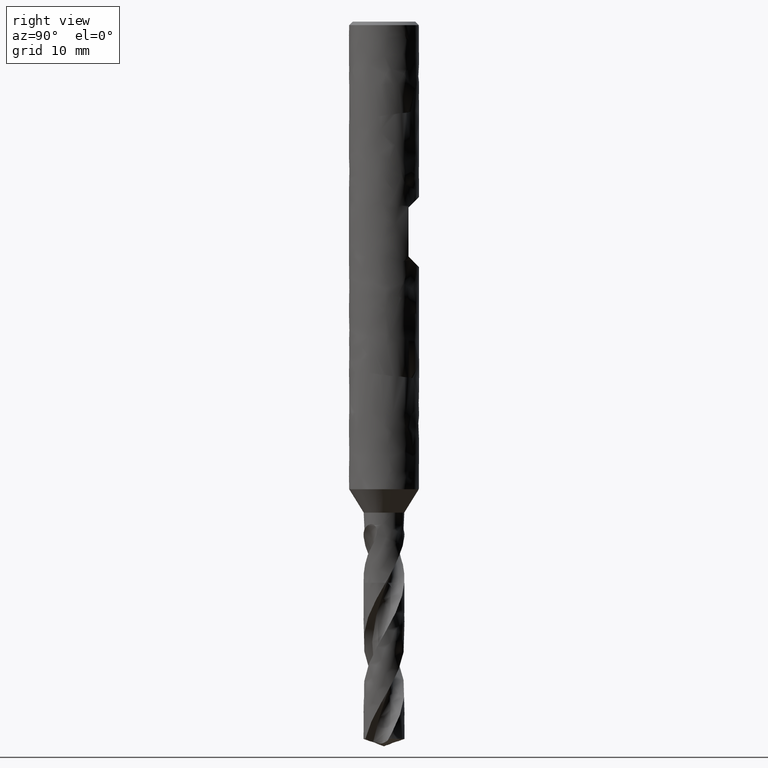
[diagram: clean part render]
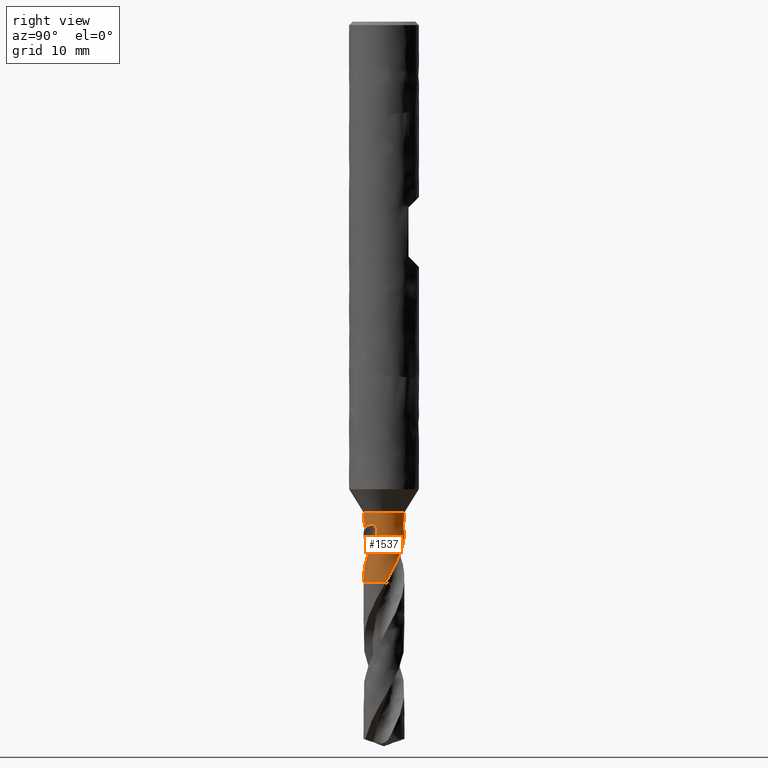
[diagram: same view with one face highlighted and labeled with its STEP entity id]
A machine part, right view. The second image highlights one B-rep face of the part: STEP entity #1537.
In plain terms, the highlighted face is a freeform B-spline surface patch.
Its self-contained STEP definition (entity closure, byte-faithful):
#75 = VERTEX_POINT('', #76);
#76 = CARTESIAN_POINT('', (-1.75, 2.67891487313483E-15, -42.));
#90 = EDGE_CURVE('', #75, #75, #91, .T.);
#91 = CIRCLE('', #92, 1.75);
#92 = AXIS2_PLACEMENT_3D('', #93, #94, #95);
#93 = CARTESIAN_POINT('', (1.57474777179495E-31, 2.57175827820944E-15, -42.));
#94 = DIRECTION('', (3.74939945665464E-33, 6.12323399573677E-17, -1.));
#95 = DIRECTION('', (-1., 6.12323399573677E-17, 0.));
#420 = VERTEX_POINT('', #421);
#421 = CARTESIAN_POINT('', (-1.74438217482353, -0.140110057304679, -48.));
#430 = VERTEX_POINT('', #431);
#431 = CARTESIAN_POINT('', (-0.0982316815535359, -1.74724083535704, -44.0364410090639));
#450 = EDGE_CURVE('', #430, #420, #451, .T.);
#451 = B_SPLINE_CURVE_WITH_KNOTS('', 3, (#452, #453, #454, #455, #456, #457, #458, #459, #460, #461, #462, #463, #464, #465, #466, #467, #468, #469, #470, #471, #472, #473, #474, #475, #476, #477, #478, #479, #480, #481, #482, #483, #484, #485, #486, #487, #488, #489, #490, #491, #492, #493, #494, #495, #496, #497, #498, #499, #500, #501, #502, #503, #504, #505, #506, #507, #508, #509, #510, #511, #512, #513, #514, #515, #516, #517, #518, #519, #520, #521, #522, #523, #524, #525, #526, #527, #528, #529, #530), .UNSPECIFIED., .F., .U., (4, 3, 3, 3, 3, 3, 3, 3, 3, 3, 3, 3, 3, 3, 3, 3, 3, 3, 3, 3, 3, 3, 3, 3, 3, 3, 4), (0., 0.19672174374837, 0.393447606873029, 0.590195334408365, 0.786979589867155, 0.98381046875644, 1.18069713024276, 1.37765106959039, 1.57468053595494, 1.87041982579311, 2.00180146103393, 2.19901176078685, 2.28661562764628, 2.37421036148187, 2.50556148507928, 2.63689136096546, 2.69527772533693, 2.89229641358599, 3.08924536666741, 3.38450117040478, 3.67972593633386, 3.81101800920561, 4.0078947967386, 4.1391833522097, 4.43428702561797, 4.63110672247985, 4.70039858098448), .UNSPECIFIED.);
#452 = CARTESIAN_POINT('', (-0.0982316815535359, -1.74724083535704, -44.0364410090639));
#453 = CARTESIAN_POINT('', (-0.140486543952289, -1.74486522341892, -44.0865291448377));
#454 = CARTESIAN_POINT('', (-0.182320539109545, -1.7409743816098, -44.1369245014227));
#455 = CARTESIAN_POINT('', (-0.223603589530472, -1.73565590908736, -44.1875936426399));
#456 = CARTESIAN_POINT('', (-0.264887504423297, -1.73033732519549, -44.2382638448747));
#457 = CARTESIAN_POINT('', (-0.305642327225331, -1.72358818768513, -44.2892373877197));
#458 = CARTESIAN_POINT('', (-0.345744098029239, -1.71550605323283, -44.3404881968753));
#459 = CARTESIAN_POINT('', (-0.385850325804751, -1.70742302051984, -44.3917447021235));
#460 = CARTESIAN_POINT('', (-0.425327667162014, -1.69800210153095, -44.4433030623318));
#461 = CARTESIAN_POINT('', (-0.464073074571237, -1.68734589858108, -44.4951327159855));
#462 = CARTESIAN_POINT('', (-0.502825675401669, -1.67668771721463, -44.5469719922643));
#463 = CARTESIAN_POINT('', (-0.540864754564272, -1.66478853367705, -44.5991088513807));
#464 = CARTESIAN_POINT('', (-0.578091073851488, -1.65175988277158, -44.6515218924505));
#465 = CARTESIAN_POINT('', (-0.615326213045082, -1.63872814503176, -44.7039473515655));
#466 = CARTESIAN_POINT('', (-0.651768074611052, -1.62455976646955, -44.7566715662768));
#467 = CARTESIAN_POINT('', (-0.687338702255017, -1.60936804627867, -44.8096682890939));
#468 = CARTESIAN_POINT('', (-0.72291941074605, -1.59417202069827, -44.8626800313778));
#469 = CARTESIAN_POINT('', (-0.757643444559132, -1.57794551009846, -44.9159879993618));
#470 = CARTESIAN_POINT('', (-0.791436854567528, -1.56080995167026, -44.9695746479554));
#471 = CARTESIAN_POINT('', (-0.825241812074036, -1.54366853787474, -45.0231796075666));
#472 = CARTESIAN_POINT('', (-0.858132443683715, -1.52560933007502, -45.0770829523868));
#473 = CARTESIAN_POINT('', (-0.890060535354285, -1.50674889859123, -45.1312583711703));
#474 = CARTESIAN_POINT('', (-0.922000870666835, -1.48788123459342, -45.1854545649013));
#475 = CARTESIAN_POINT('', (-0.952990272399225, -1.46820417719954, -45.2399435971521));
#476 = CARTESIAN_POINT('', (-0.982980200092172, -1.44784319808008, -45.2947107035739));
#477 = CARTESIAN_POINT('', (-1.02799478639674, -1.41728156881566, -45.376915591292));
#478 = CARTESIAN_POINT('', (-1.07078287873877, -1.38515968031091, -45.4598024102889));
#479 = CARTESIAN_POINT('', (-1.11124460835919, -1.35190066957326, -45.5433168184416));
#480 = CARTESIAN_POINT('', (-1.12921965727849, -1.33712541526195, -45.580417940566));
#481 = CARTESIAN_POINT('', (-1.14673957181535, -1.32212352622937, -45.6176527974825));
#482 = CARTESIAN_POINT('', (-1.16380659952563, -1.30692547564913, -45.6550110577499));
#483 = CARTESIAN_POINT('', (-1.1894250479828, -1.28411245383605, -45.7110876448016));
#484 = CARTESIAN_POINT('', (-1.21403430576089, -1.26084642271972, -45.7674519064826));
#485 = CARTESIAN_POINT('', (-1.23762101770658, -1.23725268903766, -45.8240939865246));
#486 = CARTESIAN_POINT('', (-1.24809860014285, -1.22677198743744, -45.849255274981));
#487 = CARTESIAN_POINT('', (-1.25837479305524, -1.21622635892958, -45.8744743400395));
#488 = CARTESIAN_POINT('', (-1.2684453668832, -1.20563110080677, -45.8997535671758));
#489 = CARTESIAN_POINT('', (-1.27851489081696, -1.19503694727842, -45.9250301588602));
#490 = CARTESIAN_POINT('', (-1.28837799004768, -1.1843942151721, -45.9503695309838));
#491 = CARTESIAN_POINT('', (-1.29803925320738, -1.17370954547232, -45.9757670764554));
#492 = CARTESIAN_POINT('', (-1.31252662837058, -1.15768753925254, -46.0138515135925));
#493 = CARTESIAN_POINT('', (-1.32655939097619, -1.14157348308101, -46.0520724736606));
#494 = CARTESIAN_POINT('', (-1.34019796015658, -1.12533080807031, -46.0903762334458));
#495 = CARTESIAN_POINT('', (-1.35383432312532, -1.10909076051843, -46.1286737971118));
#496 = CARTESIAN_POINT('', (-1.36707900652763, -1.09272088478574, -46.1670574997701));
#497 = CARTESIAN_POINT('', (-1.38003527414155, -1.07610531181899, -46.2054300262279));
#498 = CARTESIAN_POINT('', (-1.38579534477816, -1.06871839478331, -46.2224896046103));
#499 = CARTESIAN_POINT('', (-1.39150078794791, -1.06127928612672, -46.2395452035171));
#500 = CARTESIAN_POINT('', (-1.3971548905182, -1.0537828105929, -46.2565924364394));
#501 = CARTESIAN_POINT('', (-1.41623406908354, -1.02848673689377, -46.3141165433913));
#502 = CARTESIAN_POINT('', (-1.43471228645753, -1.00255643579999, -46.3715677835569));
#503 = CARTESIAN_POINT('', (-1.45251452431965, -0.976064319930021, -46.4289627084524));
#504 = CARTESIAN_POINT('', (-1.47031046104327, -0.949581580998651, -46.4863373182969));
#505 = CARTESIAN_POINT('', (-1.48743348061284, -0.922534502017627, -46.5436669819351));
#506 = CARTESIAN_POINT('', (-1.50383286278977, -0.89497861471296, -46.6009523205398));
#507 = CARTESIAN_POINT('', (-1.52841797832194, -0.853668236939727, -46.68683157213));
#508 = CARTESIAN_POINT('', (-1.55139301657926, -0.811188777058865, -46.7726332578273));
#509 = CARTESIAN_POINT('', (-1.57264644417919, -0.767647810920274, -46.8582994539268));
#510 = CARTESIAN_POINT('', (-1.5938976375815, -0.724111421884463, -46.9439566446453));
#511 = CARTESIAN_POINT('', (-1.61343762804156, -0.679486915537253, -47.0295098437066));
#512 = CARTESIAN_POINT('', (-1.63112413965787, -0.633982681960248, -47.1149541925339));
#513 = CARTESIAN_POINT('', (-1.63898966802798, -0.613746083137097, -47.1529529208499));
#514 = CARTESIAN_POINT('', (-1.64648978766172, -0.593333927910484, -47.1909359721852));
#515 = CARTESIAN_POINT('', (-1.65361378478654, -0.572766488862548, -47.2289033125988));
#516 = CARTESIAN_POINT('', (-1.66429645311259, -0.541924936596908, -47.2858365900489));
#517 = CARTESIAN_POINT('', (-1.67413657760607, -0.510723107786674, -47.3427402011025));
#518 = CARTESIAN_POINT('', (-1.68310028634625, -0.479242554559975, -47.3996202988879));
#519 = CARTESIAN_POINT('', (-1.68907779332871, -0.458249544615257, -47.4375511589293));
#520 = CARTESIAN_POINT('', (-1.69466599096712, -0.437131354531501, -47.4754762868185));
#521 = CARTESIAN_POINT('', (-1.6998548629264, -0.415924806888767, -47.5134044444934));
#522 = CARTESIAN_POINT('', (-1.71151814287136, -0.368257818039492, -47.5986574097294));
#523 = CARTESIAN_POINT('', (-1.72116463384556, -0.320145973055297, -47.6839623668888));
#524 = CARTESIAN_POINT('', (-1.72877354606659, -0.271738893830723, -47.7692565703397));
#525 = CARTESIAN_POINT('', (-1.7338483178561, -0.239453742822898, -47.8261436265847));
#526 = CARTESIAN_POINT('', (-1.73801892914552, -0.20702355174964, -47.883036395914));
#527 = CARTESIAN_POINT('', (-1.74127841520211, -0.174497795834842, -47.9399193670508));
#528 = CARTESIAN_POINT('', (-1.74242594184824, -0.163046858187142, -47.9599454459961));
#529 = CARTESIAN_POINT('', (-1.74346072031782, -0.151582244566561, -47.9799744046441));
#530 = CARTESIAN_POINT('', (-1.74438217482353, -0.140110057304679, -48.));
#569 = VERTEX_POINT('', #570);
#570 = CARTESIAN_POINT('', (-0.209315928972216, -1.73743685676138, -48.));
#625 = EDGE_CURVE('', #626, #569, #628, .T.);
#626 = VERTEX_POINT('', #627);
#627 = CARTESIAN_POINT('', (0.670503920200048, -1.61645429659992, -46.4198884757351));
#628 = B_SPLINE_CURVE_WITH_KNOTS('', 3, (#629, #630, #631, #632, #633, #634, #635, #636, #637, #638, #639, #640, #641, #642, #643, #644, #645, #646, #647, #648, #649, #650, #651, #652, #653, #654, #655, #656, #657, #658, #659, #660, #661, #662), .UNSPECIFIED., .F., .U., (4, 3, 3, 3, 3, 3, 3, 3, 3, 3, 3, 4), (0., 0.196912370684653, 0.492059195325573, 0.787148468239618, 0.918409681121345, 1.11521293322306, 1.24646837218767, 1.37771199716514, 1.41662988129931, 1.61395339891345, 1.81125986598311, 1.81740518934498), .UNSPECIFIED.);
#629 = CARTESIAN_POINT('', (0.670503920200047, -1.61645429659992, -46.4198884757351));
#630 = CARTESIAN_POINT('', (0.641567049603881, -1.62845728685697, -46.477567427638));
#631 = CARTESIAN_POINT('', (0.61213232277094, -1.63975511168635, -46.5351500155752));
#632 = CARTESIAN_POINT('', (0.582269470543588, -1.65029156929112, -46.5926432227011));
#633 = CARTESIAN_POINT('', (0.537508818996007, -1.66608439121591, -46.6788182936864));
#634 = CARTESIAN_POINT('', (0.491763708956138, -1.68017495230515, -46.764817784929));
#635 = CARTESIAN_POINT('', (0.445187825674481, -1.69242660102919, -46.8506062236063));
#636 = CARTESIAN_POINT('', (0.398621024389613, -1.70467586076076, -46.9363779340916));
#637 = CARTESIAN_POINT('', (0.351192379158234, -1.71509257486522, -47.0219681604022));
#638 = CARTESIAN_POINT('', (0.303158585739479, -1.72354137516116, -47.1073887090354));
#639 = CARTESIAN_POINT('', (0.281792258454202, -1.72729955912796, -47.1453853624139));
#640 = CARTESIAN_POINT('', (0.260303767323908, -1.73066945308907, -47.1833539374585));
#641 = CARTESIAN_POINT('', (0.238717380773135, -1.73364183501576, -47.2212957668518));
#642 = CARTESIAN_POINT('', (0.206352366150387, -1.73809840232013, -47.2781829100633));
#643 = CARTESIAN_POINT('', (0.173757758337975, -1.74166164744573, -47.3350169121262));
#644 = CARTESIAN_POINT('', (0.141046044290308, -1.74430674291825, -47.3918187559381));
#645 = CARTESIAN_POINT('', (0.119229380486439, -1.74607085587696, -47.4297020269913));
#646 = CARTESIAN_POINT('', (0.0973593200607882, -1.74742687072466, -47.4675757770086));
#647 = CARTESIAN_POINT('', (0.0754820796046046, -1.74837137235158, -47.5054534142957));
#648 = CARTESIAN_POINT('', (0.0536068082663439, -1.74931578896617, -47.5433276423076));
#649 = CARTESIAN_POINT('', (0.0317271915754814, -1.74984903786735, -47.5812118337766));
#650 = CARTESIAN_POINT('', (0.0098581533369631, -1.74997223315479, -47.6191012327663));
#651 = CARTESIAN_POINT('', (0.00337329209941045, -1.7500087644524, -47.6303366374578));
#652 = CARTESIAN_POINT('', (-0.0031108152520683, -1.75000924399543, -47.6415726522982));
#653 = CARTESIAN_POINT('', (-0.00959386837336357, -1.74997370199944, -47.6528091035787));
#654 = CARTESIAN_POINT('', (-0.0424645877157391, -1.7497934950887, -47.7097807540551));
#655 = CARTESIAN_POINT('', (-0.0753111378252613, -1.74868738550184, -47.7667709256039));
#656 = CARTESIAN_POINT('', (-0.108101702283763, -1.74665795791944, -47.8237529045868));
#657 = CARTESIAN_POINT('', (-0.140889433339615, -1.74462870569803, -47.8807299598091));
#658 = CARTESIAN_POINT('', (-0.173632282435535, -1.74167501371979, -47.9377074348598));
#659 = CARTESIAN_POINT('', (-0.206266905327609, -1.73780147421003, -47.9946768571364));
#660 = CARTESIAN_POINT('', (-0.207283345961527, -1.73768082863162, -47.9964512314224));
#661 = CARTESIAN_POINT('', (-0.208299687821011, -1.73755928937422, -47.9982256124543));
#662 = CARTESIAN_POINT('', (-0.209315928972216, -1.73743685676138, -48.));
#665 = VERTEX_POINT('', #666);
#666 = CARTESIAN_POINT('', (1.06988006260758, -1.38486701586643, -45.6098181163307));
#675 = EDGE_CURVE('', #676, #665, #678, .T.);
#676 = VERTEX_POINT('', #677);
#677 = CARTESIAN_POINT('', (1.36812524291428, -1.09120727623158, -43.));
#678 = B_SPLINE_CURVE_WITH_KNOTS('', 3, (#679, #680, #681, #682, #683, #684, #685, #686, #687, #688, #689, #690, #691, #692, #693, #694, #695, #696, #697, #698, #699, #700, #701, #702, #703, #704, #705, #706, #707, #708, #709, #710, #711, #712, #713, #714, #715, #716, #717, #718, #719, #720, #721, #722, #723, #724, #725, #726, #727, #728, #729, #730, #731, #732, #733, #734, #735, #736, #737, #738, #739, #740, #741, #742, #743, #744, #745, #746, #747, #748, #749, #750, #751, #752, #753, #754, #755, #756, #757, #758, #759, #760, #761, #762, #763, #764, #765, #766, #767, #768, #769, #770, #771, #772, #773, #774, #775, #776, #777, #778), .UNSPECIFIED., .F., .U., (4, 3, 3, 3, 3, 3, 3, 3, 3, 3, 3, 3, 3, 3, 3, 3, 3, 3, 3, 3, 3, 3, 3, 3, 3, 3, 3, 3, 3, 3, 3, 3, 3, 4), (0., 0.0876064604284162, 0.174954474055979, 0.233061554713989, 0.291071857956427, 0.348998773800866, 0.406869704771239, 0.464722692013906, 0.522597972911667, 0.58052854123835, 0.6385346334677, 0.696623652282654, 0.754793499270582, 0.793650941808806, 0.881083362469084, 0.968658215114641, 1.05634098697163, 1.18816145221221, 1.32013795023672, 1.45219513306295, 1.58428299878999, 1.71636487271589, 1.84841881080709, 1.98042811375123, 2.11237955534745, 2.2442673283256, 2.37608666631463, 2.50783673724395, 2.63952265806685, 2.77114618353116, 2.90270633107335, 3.03420591419199, 3.16565618698797, 3.18550606596538), .UNSPECIFIED.);
#679 = CARTESIAN_POINT('', (1.36812524291503, -1.09120727623063, -43.));
#680 = CARTESIAN_POINT('', (1.3863341507876, -1.06837745549077, -43.0000269577031));
#681 = CARTESIAN_POINT('', (1.404010280117, -1.0450337117202, -43.0016506137325));
#682 = CARTESIAN_POINT('', (1.42093114160208, -1.02149629995678, -43.0051777176047));
#683 = CARTESIAN_POINT('', (1.43780208505034, -0.998028325638281, -43.0086944162089));
#684 = CARTESIAN_POINT('', (1.45400448005079, -0.974248773254522, -43.0141286427403));
#685 = CARTESIAN_POINT('', (1.46927015733305, -0.950655145029208, -43.021747141595));
#686 = CARTESIAN_POINT('', (1.4794254419732, -0.934959804043561, -43.0268152445668));
#687 = CARTESIAN_POINT('', (1.48920161623475, -0.919295187944383, -43.0328663552207));
#688 = CARTESIAN_POINT('', (1.49851413549821, -0.903855843435251, -43.0399418642912));
#689 = CARTESIAN_POINT('', (1.50781114474917, -0.888442213173726, -43.0470055890925));
#690 = CARTESIAN_POINT('', (1.5166773828833, -0.873201001334438, -43.0551163445982));
#691 = CARTESIAN_POINT('', (1.52503401379854, -0.858353806281251, -43.0642617317261));
#692 = CARTESIAN_POINT('', (1.53337863240443, -0.84352795345339, -43.0733939727404));
#693 = CARTESIAN_POINT('', (1.54124679019073, -0.829039208698176, -43.0835942549671));
#694 = CARTESIAN_POINT('', (1.54857711546831, -0.815112824980589, -43.094781683875));
#695 = CARTESIAN_POINT('', (1.55590035617508, -0.801199900754626, -43.1059583004206));
#696 = CARTESIAN_POINT('', (1.56271666849305, -0.787792721946847, -43.1181658146862));
#697 = CARTESIAN_POINT('', (1.56899220606779, -0.775089322141983, -43.1312561673905));
#698 = CARTESIAN_POINT('', (1.57526579782041, -0.762389861211839, -43.1443424612396));
#699 = CARTESIAN_POINT('', (1.58102494242089, -0.750342700622784, -43.1583630327344));
#700 = CARTESIAN_POINT('', (1.58626665650486, -0.73909275091892, -43.173122721526));
#701 = CARTESIAN_POINT('', (1.59151039048393, -0.727838466045681, -43.1878880979652));
#702 = CARTESIAN_POINT('', (1.59625704608792, -0.717338885973317, -43.2034474152414));
#703 = CARTESIAN_POINT('', (1.60052967737482, -0.707675597885403, -43.2195885893208));
#704 = CARTESIAN_POINT('', (1.60480639024533, -0.698003078596447, -43.2357451828331));
#705 = CARTESIAN_POINT('', (1.60862336037621, -0.689134999639388, -43.2525371820438));
#706 = CARTESIAN_POINT('', (1.61201994979088, -0.681095941462145, -43.2697627485153));
#707 = CARTESIAN_POINT('', (1.61542096732866, -0.673046402789632, -43.2870107719046));
#708 = CARTESIAN_POINT('', (1.61841076246628, -0.665804115057992, -43.3047410077672));
#709 = CARTESIAN_POINT('', (1.62103510471231, -0.659352098116285, -43.3227782084682));
#710 = CARTESIAN_POINT('', (1.6236631987667, -0.652890857251458, -43.340841195486));
#711 = CARTESIAN_POINT('', (1.62593124378833, -0.64720623333377, -43.3592529956072));
#712 = CARTESIAN_POINT('', (1.62788424011676, -0.642256102173793, -43.3778704073155));
#713 = CARTESIAN_POINT('', (1.62983995394892, -0.637299083136111, -43.3965137242879));
#714 = CARTESIAN_POINT('', (1.6314835398811, -0.633068717165675, -43.4153973776843));
#715 = CARTESIAN_POINT('', (1.63285527563452, -0.629510642351603, -43.4344086524103));
#716 = CARTESIAN_POINT('', (1.63377159475819, -0.627133849308583, -43.4471081789433));
#717 = CARTESIAN_POINT('', (1.63456730896523, -0.625054731716784, -43.4598757454494));
#718 = CARTESIAN_POINT('', (1.63525284940557, -0.623256061752319, -43.4726843980222));
#719 = CARTESIAN_POINT('', (1.63679537141021, -0.619208907367227, -43.5015049128757));
#720 = CARTESIAN_POINT('', (1.63778463798036, -0.616574217410797, -43.5305822517412));
#721 = CARTESIAN_POINT('', (1.63831611610973, -0.615158762999557, -43.5596871470163));
#722 = CARTESIAN_POINT('', (1.63884846004476, -0.613741002739063, -43.5888394556878));
#723 = CARTESIAN_POINT('', (1.63892230906078, -0.613542565414393, -43.6180804678249));
#724 = CARTESIAN_POINT('', (1.63860542044066, -0.614387724570164, -43.6472581274758));
#725 = CARTESIAN_POINT('', (1.63828814131608, -0.615233925222516, -43.6764717429967));
#726 = CARTESIAN_POINT('', (1.63757845114079, -0.617126972709268, -43.7056665546259));
#727 = CARTESIAN_POINT('', (1.63652260656598, -0.619914315206936, -43.7347417668767));
#728 = CARTESIAN_POINT('', (1.63493527167539, -0.62410474825377, -43.7784528394704));
#729 = CARTESIAN_POINT('', (1.63256408533588, -0.630321414343345, -43.8219770940221));
#730 = CARTESIAN_POINT('', (1.62950060100851, -0.638144020823593, -43.8651066560429));
#731 = CARTESIAN_POINT('', (1.62643349050681, -0.645975886739122, -43.9082872695117));
#732 = CARTESIAN_POINT('', (1.62266547045788, -0.655432542192796, -43.9511493046943));
#733 = CARTESIAN_POINT('', (1.6182416848958, -0.666178541582971, -43.993578826121));
#734 = CARTESIAN_POINT('', (1.61381519481991, -0.676931110618827, -44.0360342871473));
#735 = CARTESIAN_POINT('', (1.60872598957346, -0.688988315905038, -44.0781096464362));
#736 = CARTESIAN_POINT('', (1.6029929522305, -0.702078054848129, -44.1197445926166));
#737 = CARTESIAN_POINT('', (1.59725858284174, -0.715170835134015, -44.1613892124922));
#738 = CARTESIAN_POINT('', (1.59087429730304, -0.729309263479572, -44.2026305734875));
#739 = CARTESIAN_POINT('', (1.58384688407942, -0.744264098147904, -44.2434416827092));
#740 = CARTESIAN_POINT('', (1.57681978963498, -0.759218254431473, -44.2842509406477));
#741 = CARTESIAN_POINT('', (1.56914497236116, -0.774998383029103, -44.3246577909049));
#742 = CARTESIAN_POINT('', (1.56082539904291, -0.791406389728155, -44.3646573458516));
#743 = CARTESIAN_POINT('', (1.55250758534706, -0.807810926069397, -44.4046484407356));
#744 = CARTESIAN_POINT('', (1.5435405496855, -0.824852348845201, -44.4442528028221));
#745 = CARTESIAN_POINT('', (1.53392774909446, -0.842357204847213, -44.483479790833));
#746 = CARTESIAN_POINT('', (1.5243181976967, -0.859856144086474, -44.5226935198499));
#747 = CARTESIAN_POINT('', (1.51405916942343, -0.877825626761955, -44.5615459288459));
#748 = CARTESIAN_POINT('', (1.50316056623925, -0.896107310595856, -44.6000592172125));
#749 = CARTESIAN_POINT('', (1.49226674005075, -0.914380981336397, -44.6385556247174));
#750 = CARTESIAN_POINT('', (1.48073072154359, -0.932971906698418, -44.6767262239139));
#751 = CARTESIAN_POINT('', (1.46856927707271, -0.951737505007602, -44.7146013802915));
#752 = CARTESIAN_POINT('', (1.4564137006875, -0.970494048624415, -44.7524582613185));
#753 = CARTESIAN_POINT('', (1.44362988242142, -0.989430330083765, -44.7900299071547));
#754 = CARTESIAN_POINT('', (1.4302441027383, -1.00841549302967, -44.8273540802465));
#755 = CARTESIAN_POINT('', (1.41686526877627, -1.02739080480143, -44.864658886271));
#756 = CARTESIAN_POINT('', (1.40288197767705, -1.04641926745805, -44.9017246477944));
#757 = CARTESIAN_POINT('', (1.38833301293586, -1.06537854549094, -44.9385970983363));
#758 = CARTESIAN_POINT('', (1.37379169323389, -1.08432786099888, -44.9754501735251));
#759 = CARTESIAN_POINT('', (1.35868264556515, -1.1032116088272, -45.0121172299971));
#760 = CARTESIAN_POINT('', (1.34305265502258, -1.12192226372277, -45.0486451710393));
#761 = CARTESIAN_POINT('', (1.32743027484066, -1.14062380825891, -45.0851553263507));
#762 = CARTESIAN_POINT('', (1.31128472585614, -1.15915559594471, -45.1215325152537));
#763 = CARTESIAN_POINT('', (1.29467670035659, -1.17741761561223, -45.1578294861757));
#764 = CARTESIAN_POINT('', (1.27807654406357, -1.19567098237851, -45.1941092588847));
#765 = CARTESIAN_POINT('', (1.26101170614617, -1.21365760378228, -45.2303143985887));
#766 = CARTESIAN_POINT('', (1.24355892790831, -1.23128436716311, -45.2665037649768));
#767 = CARTESIAN_POINT('', (1.22611455334156, -1.24890264309739, -45.3026757058565));
#768 = CARTESIAN_POINT('', (1.20828064233756, -1.26616346133203, -45.3388377486217));
#769 = CARTESIAN_POINT('', (1.19014354058683, -1.28298805637509, -45.3750468317314));
#770 = CARTESIAN_POINT('', (1.17201478834873, -1.29980490612506, -45.4112392457944));
#771 = CARTESIAN_POINT('', (1.15358053186681, -1.31618842578887, -45.4474840963224));
#772 = CARTESIAN_POINT('', (1.13493513037531, -1.33207441602936, -45.4838342441382));
#773 = CARTESIAN_POINT('', (1.1162967206228, -1.34795444926768, -45.5201707612073));
#774 = CARTESIAN_POINT('', (1.09744458048193, -1.3633397724085, -45.5566183766007));
#775 = CARTESIAN_POINT('', (1.07847924418622, -1.37818087341956, -45.5932239224432));
#776 = CARTESIAN_POINT('', (1.07561535031801, -1.38042197990565, -45.598751607091));
#777 = CARTESIAN_POINT('', (1.07274883844845, -1.38265074091651, -45.6042829564905));
#778 = CARTESIAN_POINT('', (1.06988006260758, -1.38486701586643, -45.6098181163307));
#780 = EDGE_CURVE('', #676, #781, #783, .T.);
#781 = VERTEX_POINT('', #782);
#782 = CARTESIAN_POINT('', (1.36720002635966, -1.09236627919491, -43.));
#783 = LINE('', #784, #785);
#784 = CARTESIAN_POINT('', (1.36812524291428, -1.09120727623158, -43.));
#785 = VECTOR('', #786, 0.0014830082744049);
#786 = DIRECTION('', (-0.000925216554617414, -0.00115900296333327, 0.));
#788 = EDGE_CURVE('', #781, #430, #789, .T.);
#789 = B_SPLINE_CURVE_WITH_KNOTS('', 3, (#790, #791, #792, #793, #794, #795, #796, #797, #798, #799, #800, #801, #802, #803, #804, #805, #806, #807, #808, #809, #810, #811, #812, #813, #814, #815, #816, #817, #818, #819, #820, #821, #822, #823, #824, #825, #826, #827, #828, #829, #830, #831, #832, #833, #834, #835, #836, #837, #838), .UNSPECIFIED., .F., .U., (4, 3, 3, 3, 3, 3, 3, 3, 3, 3, 3, 3, 3, 3, 3, 3, 4), (0., 0.0877886895911816, 0.175300693010441, 0.262613165509976, 0.349783454359497, 0.436852692636223, 0.566934991375601, 0.696854749284846, 0.826680091037021, 0.956454580274272, 1.08620733632173, 1.2796571814525, 1.47316306476609, 1.66678634796347, 1.86058634812987, 1.88649870792638, 2.01355357009072), .UNSPECIFIED.);
#790 = CARTESIAN_POINT('', (1.36720002635868, -1.09236627919614, -43.));
#791 = CARTESIAN_POINT('', (1.348933861896, -1.1152281168512, -43.0000269852739));
#792 = CARTESIAN_POINT('', (1.33006821204651, -1.13765822958676, -43.0016488214403));
#793 = CARTESIAN_POINT('', (1.31077786483607, -1.15946599305706, -43.004584987354));
#794 = CARTESIAN_POINT('', (1.29154831557522, -1.18120502436356, -43.0075118992679));
#795 = CARTESIAN_POINT('', (1.27184451708894, -1.20238684915239, -43.0117518775306));
#796 = CARTESIAN_POINT('', (1.25180205315617, -1.22290294779022, -43.0170732679936));
#797 = CARTESIAN_POINT('', (1.23180528685464, -1.24337226889045, -43.0223825254702));
#798 = CARTESIAN_POINT('', (1.21143012706524, -1.26322240000761, -43.0287791878967));
#799 = CARTESIAN_POINT('', (1.1907841901799, -1.28239347020234, -43.036077635779));
#800 = CARTESIAN_POINT('', (1.1701718740887, -1.30153332134375, -43.0433641985328));
#801 = CARTESIAN_POINT('', (1.14925634618401, -1.3200279752899, -43.0515616176578));
#802 = CARTESIAN_POINT('', (1.12812553244469, -1.33784632265682, -43.0605221243928));
#803 = CARTESIAN_POINT('', (1.10701921421709, -1.35564401442845, -43.0694722438234));
#804 = CARTESIAN_POINT('', (1.08567058747276, -1.37279058915999, -43.0791956189171));
#805 = CARTESIAN_POINT('', (1.06415354893067, -1.38927219230007, -43.0895741038574));
#806 = CARTESIAN_POINT('', (1.03200688162295, -1.41389586956894, -43.1050796624815));
#807 = CARTESIAN_POINT('', (0.999422911294785, -1.4370815671387, -43.1220749485011));
#808 = CARTESIAN_POINT('', (0.966607873839315, -1.45882460159946, -43.1402565276051));
#809 = CARTESIAN_POINT('', (0.933833839529395, -1.48054046763758, -43.1584153884069));
#810 = CARTESIAN_POINT('', (0.90076643296362, -1.50085983860467, -43.1777936421147));
#811 = CARTESIAN_POINT('', (0.867577818090698, -1.51980549069839, -43.1981661357744));
#812 = CARTESIAN_POINT('', (0.834413322270376, -1.53873737448087, -43.218523824199));
#813 = CARTESIAN_POINT('', (0.801075985750746, -1.5563275697995, -43.2399069142451));
#814 = CARTESIAN_POINT('', (0.767714421174675, -1.57261392831185, -43.262144180714));
#815 = CARTESIAN_POINT('', (0.73436592430509, -1.58889390746653, -43.2843727368578));
#816 = CARTESIAN_POINT('', (0.70094949482811, -1.60389266613633, -43.3074844654398));
#817 = CARTESIAN_POINT('', (0.667596585717259, -1.61765719444468, -43.3313463573864));
#818 = CARTESIAN_POINT('', (0.634249262181108, -1.63141941762275, -43.3552042532083));
#819 = CARTESIAN_POINT('', (0.600927887413, -1.64396346402634, -43.3798392622207));
#820 = CARTESIAN_POINT('', (0.56775088485083, -1.65534254242169, -43.405146277903));
#821 = CARTESIAN_POINT('', (0.518286918126245, -1.67230773854057, -43.4428767925647));
#822 = CARTESIAN_POINT('', (0.469057327961862, -1.68671168985973, -43.482166075511));
#823 = CARTESIAN_POINT('', (0.420413963471636, -1.69875015800384, -43.5227492246734));
#824 = CARTESIAN_POINT('', (0.371756508064197, -1.71079211342848, -43.5633441298852));
#825 = CARTESIAN_POINT('', (0.323595456141573, -1.72048980445196, -43.6053096794683));
#826 = CARTESIAN_POINT('', (0.276246806345847, -1.72805894054101, -43.6484526572018));
#827 = CARTESIAN_POINT('', (0.228869430157475, -1.73563266881962, -43.6916218097497));
#828 = CARTESIAN_POINT('', (0.182230604853079, -1.74108788814849, -43.736039035593));
#829 = CARTESIAN_POINT('', (0.136598784823938, -1.74466064665442, -43.7815420603685));
#830 = CARTESIAN_POINT('', (0.0909253173400409, -1.74823666596165, -43.8270866150494));
#831 = CARTESIAN_POINT('', (0.0461973876547094, -1.74993198861725, -43.8737825259433));
#832 = CARTESIAN_POINT('', (0.00265247915911645, -1.74999798981436, -43.9215004114278));
#833 = CARTESIAN_POINT('', (-0.00316976715293382, -1.75000681461707, -43.9278806127505));
#834 = CARTESIAN_POINT('', (-0.00897147651287237, -1.74998655161572, -43.93427972075));
#835 = CARTESIAN_POINT('', (-0.0147521211113664, -1.74993782030183, -43.9406974596196));
#836 = CARTESIAN_POINT('', (-0.0430960854762569, -1.74969887832901, -43.9721652585345));
#837 = CARTESIAN_POINT('', (-0.0709409224561906, -1.74877514997627, -44.004091045783));
#838 = CARTESIAN_POINT('', (-0.0982316815535362, -1.74724083535704, -44.0364410090639));
#935 = EDGE_CURVE('', #665, #626, #936, .T.);
#936 = B_SPLINE_CURVE_WITH_KNOTS('', 3, (#937, #938, #939, #940, #941, #942, #943, #944, #945, #946, #947, #948, #949, #950, #951, #952, #953, #954, #955, #956, #957, #958, #959, #960, #961), .UNSPECIFIED., .F., .U., (4, 3, 3, 3, 3, 3, 3, 3, 4), (0., 0.197072507875069, 0.328476214210065, 0.386863973633481, 0.518211825790344, 0.649512301890386, 0.707888703290943, 0.766270457607656, 0.933425789926706), .UNSPECIFIED.);
#937 = CARTESIAN_POINT('', (1.06988006260758, -1.38486701586643, -45.6098181163307));
#938 = CARTESIAN_POINT('', (1.04139843558426, -1.40687051840766, -45.6647719945099));
#939 = CARTESIAN_POINT('', (1.01283689070659, -1.427530401297, -45.7202407734815));
#940 = CARTESIAN_POINT('', (0.984416612719733, -1.44686693672964, -45.7762199850293));
#941 = CARTESIAN_POINT('', (0.965466583094537, -1.45976012234402, -45.8135457183567));
#942 = CARTESIAN_POINT('', (0.946575225882684, -1.47206797138485, -45.8511091162514));
#943 = CARTESIAN_POINT('', (0.927830167990785, -1.48378946598469, -45.8889215162741));
#944 = CARTESIAN_POINT('', (0.919501012283563, -1.48899778031514, -45.9057230310665));
#945 = CARTESIAN_POINT('', (0.911202046009472, -1.49408968078959, -45.9225760731766));
#946 = CARTESIAN_POINT('', (0.902934844658736, -1.49906926667886, -45.93947723818));
#947 = CARTESIAN_POINT('', (0.884337125693485, -1.51027123636643, -45.9774977367242));
#948 = CARTESIAN_POINT('', (0.865901224914499, -1.52090601196717, -46.0157678031948));
#949 = CARTESIAN_POINT('', (0.847548687601836, -1.53106538793899, -46.0541981172605));
#950 = CARTESIAN_POINT('', (0.829202769893805, -1.54122109951002, -46.0926145698377));
#951 = CARTESIAN_POINT('', (0.81093776635824, -1.55090437807911, -46.131196041024));
#952 = CARTESIAN_POINT('', (0.792569604975064, -1.56023505321143, -46.1698105998284));
#953 = CARTESIAN_POINT('', (0.784403091084608, -1.56438348627917, -46.1869786943519));
#954 = CARTESIAN_POINT('', (0.77621457700066, -1.56846258405096, -46.204153227669));
#955 = CARTESIAN_POINT('', (0.767981713492266, -1.57248341413875, -46.2213199920545));
#956 = CARTESIAN_POINT('', (0.759748095058473, -1.5765046129229, -46.2384883305735));
#957 = CARTESIAN_POINT('', (0.751466929501005, -1.58046893970036, -46.255647352186));
#958 = CARTESIAN_POINT('', (0.743138848960221, -1.58437516111749, -46.272796663205));
#959 = CARTESIAN_POINT('', (0.719294360443779, -1.59555923303746, -46.3218975992074));
#960 = CARTESIAN_POINT('', (0.695067903681419, -1.6062651763417, -46.3709258618596));
#961 = CARTESIAN_POINT('', (0.670503920200048, -1.61645429659992, -46.4198884757351));
#983 = VERTEX_POINT('', #984);
#984 = CARTESIAN_POINT('', (0.209315928972215, 1.73743685676138, -48.));
#1039 = EDGE_CURVE('', #1040, #983, #1042, .T.);
#1040 = VERTEX_POINT('', #1041);
#1041 = CARTESIAN_POINT('', (-0.67050392020005, 1.61645429659993, -46.4198884757351));
#1042 = B_SPLINE_CURVE_WITH_KNOTS('', 3, (#1043, #1044, #1045, #1046, #1047, #1048, #1049, #1050, #1051, #1052, #1053, #1054, #1055, #1056, #1057, #1058, #1059, #1060, #1061, #1062, #1063, #1064, #1065, #1066, #1067, #1068, #1069, #1070, #1071, #1072, #1073, #1074, #1075, #1076), .UNSPECIFIED., .F., .U., (4, 3, 3, 3, 3, 3, 3, 3, 3, 3, 3, 4), (0., 0.196912370684651, 0.492059195325568, 0.787148468239617, 0.918409681121345, 1.11521293322306, 1.24646837218767, 1.37771199716514, 1.4166298812993, 1.61395339891344, 1.8112598659831, 1.81740518934497), .UNSPECIFIED.);
#1043 = CARTESIAN_POINT('', (-0.670503920200047, 1.61645429659993, -46.4198884757351));
#1044 = CARTESIAN_POINT('', (-0.641567049603881, 1.62845728685698, -46.477567427638));
#1045 = CARTESIAN_POINT('', (-0.612132322770939, 1.63975511168636, -46.5351500155752));
#1046 = CARTESIAN_POINT('', (-0.582269470543587, 1.65029156929113, -46.5926432227011));
#1047 = CARTESIAN_POINT('', (-0.537508818996007, 1.66608439121592, -46.6788182936864));
#1048 = CARTESIAN_POINT('', (-0.491763708956139, 1.68017495230516, -46.764817784929));
#1049 = CARTESIAN_POINT('', (-0.445187825674482, 1.6924266010292, -46.8506062236063));
#1050 = CARTESIAN_POINT('', (-0.398621024389613, 1.70467586076077, -46.9363779340916));
#1051 = CARTESIAN_POINT('', (-0.351192379158234, 1.71509257486522, -47.0219681604022));
#1052 = CARTESIAN_POINT('', (-0.303158585739479, 1.72354137516117, -47.1073887090354));
#1053 = CARTESIAN_POINT('', (-0.281792258454201, 1.72729955912797, -47.1453853624139));
#1054 = CARTESIAN_POINT('', (-0.260303767323907, 1.73066945308907, -47.1833539374585));
#1055 = CARTESIAN_POINT('', (-0.238717380773134, 1.73364183501577, -47.2212957668519));
#1056 = CARTESIAN_POINT('', (-0.206352366150385, 1.73809840232014, -47.2781829100633));
#1057 = CARTESIAN_POINT('', (-0.173757758337974, 1.74166164744574, -47.3350169121262));
#1058 = CARTESIAN_POINT('', (-0.141046044290307, 1.74430674291826, -47.3918187559381));
#1059 = CARTESIAN_POINT('', (-0.119229380486439, 1.74607085587697, -47.4297020269913));
#1060 = CARTESIAN_POINT('', (-0.0973593200607885, 1.74742687072467, -47.4675757770086));
#1061 = CARTESIAN_POINT('', (-0.0754820796046059, 1.74837137235159, -47.5054534142957));
#1062 = CARTESIAN_POINT('', (-0.0536068082663451, 1.74931578896618, -47.5433276423076));
#1063 = CARTESIAN_POINT('', (-0.0317271915754833, 1.74984903786735, -47.5812118337766));
#1064 = CARTESIAN_POINT('', (-0.00985815333696499, 1.7499722331548, -47.6191012327663));
#1065 = CARTESIAN_POINT('', (-0.003373292099413, 1.7500087644524, -47.6303366374578));
#1066 = CARTESIAN_POINT('', (0.00311081525206723, 1.75000924399544, -47.6415726522982));
#1067 = CARTESIAN_POINT('', (0.00959386837336181, 1.74997370199945, -47.6528091035787));
#1068 = CARTESIAN_POINT('', (0.0424645877157373, 1.74979349508871, -47.7097807540551));
#1069 = CARTESIAN_POINT('', (0.0753111378252573, 1.74868738550184, -47.7667709256039));
#1070 = CARTESIAN_POINT('', (0.108101702283759, 1.74665795791945, -47.8237529045868));
#1071 = CARTESIAN_POINT('', (0.140889433339611, 1.74462870569803, -47.880729959809));
#1072 = CARTESIAN_POINT('', (0.173632282435532, 1.7416750137198, -47.9377074348598));
#1073 = CARTESIAN_POINT('', (0.206266905327606, 1.73780147421003, -47.9946768571364));
#1074 = CARTESIAN_POINT('', (0.207283345961525, 1.73768082863163, -47.9964512314224));
#1075 = CARTESIAN_POINT('', (0.208299687821009, 1.73755928937423, -47.9982256124543));
#1076 = CARTESIAN_POINT('', (0.209315928972215, 1.73743685676138, -48.));
#1079 = VERTEX_POINT('', #1080);
#1080 = CARTESIAN_POINT('', (-1.06988006260758, 1.38486701586644, -45.6098181163307));
#1089 = EDGE_CURVE('', #1090, #1079, #1092, .T.);
#1090 = VERTEX_POINT('', #1091);
#1091 = CARTESIAN_POINT('', (-1.36812524291502, 1.09120727623065, -43.));
#1092 = B_SPLINE_CURVE_WITH_KNOTS('', 3, (#1093, #1094, #1095, #1096, #1097, #1098, #1099, #1100, #1101, #1102, #1103, #1104, #1105, #1106, #1107, #1108, #1109, #1110, #1111, #1112, #1113, #1114, #1115, #1116, #1117, #1118, #1119, #1120, #1121, #1122, #1123, #1124, #1125, #1126, #1127, #1128, #1129, #1130, #1131, #1132, #1133, #1134, #1135, #1136, #1137, #1138, #1139, #1140, #1141, #1142, #1143, #1144, #1145, #1146, #1147, #1148, #1149, #1150, #1151, #1152, #1153, #1154, #1155, #1156, #1157, #1158, #1159, #1160, #1161, #1162, #1163, #1164, #1165, #1166, #1167, #1168, #1169, #1170, #1171, #1172, #1173, #1174, #1175, #1176, #1177, #1178, #1179, #1180, #1181, #1182, #1183, #1184, #1185, #1186, #1187, #1188, #1189, #1190, #1191, #1192), .UNSPECIFIED., .F., .U., (4, 3, 3, 3, 3, 3, 3, 3, 3, 3, 3, 3, 3, 3, 3, 3, 3, 3, 3, 3, 3, 3, 3, 3, 3, 3, 3, 3, 3, 3, 3, 3, 3, 4), (0., 0.0876064604284158, 0.174954474055979, 0.23306155471399, 0.291071857956429, 0.348998773800869, 0.406869704771241, 0.464722692013909, 0.52259797291167, 0.580528541238351, 0.638534633467701, 0.696623652282653, 0.75479349927058, 0.793650941808802, 0.881083362469083, 0.968658215114642, 1.05634098697163, 1.18816145221221, 1.32013795023671, 1.45219513306295, 1.58428299878999, 1.71636487271589, 1.8484188108071, 1.98042811375124, 2.11237955534746, 2.24426732832561, 2.37608666631463, 2.50783673724395, 2.63952265806686, 2.77114618353117, 2.90270633107335, 3.03420591419199, 3.16565618698798, 3.18550606596555), .UNSPECIFIED.);
#1093 = CARTESIAN_POINT('', (-1.36812524291493, 1.09120727623077, -43.));
#1094 = CARTESIAN_POINT('', (-1.3863341507875, 1.06837745549091, -43.0000269577031));
#1095 = CARTESIAN_POINT('', (-1.4040102801169, 1.04503371172034, -43.0016506137324));
#1096 = CARTESIAN_POINT('', (-1.42093114160199, 1.02149629995692, -43.0051777176047));
#1097 = CARTESIAN_POINT('', (-1.43780208505024, 0.998028325638421, -43.0086944162088));
#1098 = CARTESIAN_POINT('', (-1.4540044800507, 0.974248773254663, -43.0141286427402));
#1099 = CARTESIAN_POINT('', (-1.46927015733297, 0.950655145029347, -43.021747141595));
#1100 = CARTESIAN_POINT('', (-1.47942544197312, 0.934959804043701, -43.0268152445668));
#1101 = CARTESIAN_POINT('', (-1.48920161623467, 0.919295187944521, -43.0328663552206));
#1102 = CARTESIAN_POINT('', (-1.49851413549813, 0.903855843435388, -43.0399418642911));
#1103 = CARTESIAN_POINT('', (-1.5078111447491, 0.888442213173862, -43.0470055890924));
#1104 = CARTESIAN_POINT('', (-1.51667738288322, 0.873201001334573, -43.0551163445981));
#1105 = CARTESIAN_POINT('', (-1.52503401379847, 0.858353806281383, -43.064261731726));
#1106 = CARTESIAN_POINT('', (-1.53337863240436, 0.843527953453521, -43.0733939727403));
#1107 = CARTESIAN_POINT('', (-1.54124679019066, 0.829039208698303, -43.083594254967));
#1108 = CARTESIAN_POINT('', (-1.54857711546825, 0.815112824980713, -43.0947816838749));
#1109 = CARTESIAN_POINT('', (-1.55590035617502, 0.801199900754748, -43.1059583004205));
#1110 = CARTESIAN_POINT('', (-1.562716668493, 0.787792721946965, -43.1181658146861));
#1111 = CARTESIAN_POINT('', (-1.56899220606774, 0.775089322142097, -43.1312561673904));
#1112 = CARTESIAN_POINT('', (-1.57526579782036, 0.762389861211949, -43.1443424612395));
#1113 = CARTESIAN_POINT('', (-1.58102494242084, 0.750342700622889, -43.1583630327343));
#1114 = CARTESIAN_POINT('', (-1.58626665650481, 0.739092750919021, -43.1731227215258));
#1115 = CARTESIAN_POINT('', (-1.59151039048389, 0.727838466045778, -43.1878880979651));
#1116 = CARTESIAN_POINT('', (-1.59625704608788, 0.71733888597341, -43.2034474152413));
#1117 = CARTESIAN_POINT('', (-1.60052967737478, 0.707675597885491, -43.2195885893207));
#1118 = CARTESIAN_POINT('', (-1.6048063902453, 0.698003078596531, -43.235745182833));
#1119 = CARTESIAN_POINT('', (-1.60862336037618, 0.689134999639467, -43.2525371820436));
#1120 = CARTESIAN_POINT('', (-1.61201994979085, 0.68109594146222, -43.2697627485152));
#1121 = CARTESIAN_POINT('', (-1.61542096732863, 0.673046402789702, -43.2870107719044));
#1122 = CARTESIAN_POINT('', (-1.61841076246625, 0.665804115058058, -43.304741007767));
#1123 = CARTESIAN_POINT('', (-1.62103510471229, 0.659352098116347, -43.322778208468));
#1124 = CARTESIAN_POINT('', (-1.62366319876668, 0.652890857251515, -43.3408411954858));
#1125 = CARTESIAN_POINT('', (-1.62593124378831, 0.647206233333822, -43.359252995607));
#1126 = CARTESIAN_POINT('', (-1.62788424011674, 0.642256102173841, -43.3778704073153));
#1127 = CARTESIAN_POINT('', (-1.6298399539489, 0.637299083136155, -43.3965137242877));
#1128 = CARTESIAN_POINT('', (-1.63148353988109, 0.633068717165715, -43.4153973776841));
#1129 = CARTESIAN_POINT('', (-1.63285527563451, 0.62951064235164, -43.4344086524101));
#1130 = CARTESIAN_POINT('', (-1.63377159475818, 0.627133849308617, -43.4471081789431));
#1131 = CARTESIAN_POINT('', (-1.63456730896522, 0.625054731716815, -43.4598757454492));
#1132 = CARTESIAN_POINT('', (-1.63525284940556, 0.623256061752348, -43.4726843980221));
#1133 = CARTESIAN_POINT('', (-1.6367953714102, 0.61920890736725, -43.5015049128755));
#1134 = CARTESIAN_POINT('', (-1.63778463798035, 0.616574217410816, -43.530582251741));
#1135 = CARTESIAN_POINT('', (-1.63831611610972, 0.61515876299957, -43.5596871470161));
#1136 = CARTESIAN_POINT('', (-1.63884846004475, 0.613741002739072, -43.5888394556876));
#1137 = CARTESIAN_POINT('', (-1.63892230906078, 0.613542565414398, -43.6180804678247));
#1138 = CARTESIAN_POINT('', (-1.63860542044066, 0.614387724570165, -43.6472581274756));
#1139 = CARTESIAN_POINT('', (-1.63828814131608, 0.615233925222512, -43.6764717429966));
#1140 = CARTESIAN_POINT('', (-1.63757845114079, 0.61712697270926, -43.7056665546258));
#1141 = CARTESIAN_POINT('', (-1.63652260656599, 0.619914315206925, -43.7347417668765));
#1142 = CARTESIAN_POINT('', (-1.63493527167539, 0.624104748253753, -43.7784528394703));
#1143 = CARTESIAN_POINT('', (-1.63256408533589, 0.630321414343325, -43.821977094022));
#1144 = CARTESIAN_POINT('', (-1.62950060100852, 0.638144020823568, -43.8651066560427));
#1145 = CARTESIAN_POINT('', (-1.62643349050682, 0.645975886739093, -43.9082872695115));
#1146 = CARTESIAN_POINT('', (-1.62266547045789, 0.655432542192763, -43.9511493046941));
#1147 = CARTESIAN_POINT('', (-1.61824168489581, 0.666178541582935, -43.9935788261208));
#1148 = CARTESIAN_POINT('', (-1.61381519481993, 0.676931110618788, -44.0360342871472));
#1149 = CARTESIAN_POINT('', (-1.60872598957348, 0.688988315904996, -44.078109646436));
#1150 = CARTESIAN_POINT('', (-1.60299295223053, 0.702078054848084, -44.1197445926164));
#1151 = CARTESIAN_POINT('', (-1.59725858284177, 0.715170835133967, -44.161389212492));
#1152 = CARTESIAN_POINT('', (-1.59087429730307, 0.729309263479522, -44.2026305734874));
#1153 = CARTESIAN_POINT('', (-1.58384688407944, 0.744264098147852, -44.2434416827091));
#1154 = CARTESIAN_POINT('', (-1.57681978963501, 0.759218254431419, -44.2842509406476));
#1155 = CARTESIAN_POINT('', (-1.56914497236119, 0.774998383029049, -44.3246577909047));
#1156 = CARTESIAN_POINT('', (-1.56082539904294, 0.791406389728099, -44.3646573458515));
#1157 = CARTESIAN_POINT('', (-1.55250758534709, 0.80781092606934, -44.4046484407354));
#1158 = CARTESIAN_POINT('', (-1.54354054968553, 0.824852348845142, -44.4442528028219));
#1159 = CARTESIAN_POINT('', (-1.53392774909449, 0.842357204847153, -44.4834797908329));
#1160 = CARTESIAN_POINT('', (-1.52431819769673, 0.859856144086413, -44.5226935198498));
#1161 = CARTESIAN_POINT('', (-1.51405916942347, 0.877825626761894, -44.5615459288457));
#1162 = CARTESIAN_POINT('', (-1.50316056623929, 0.896107310595795, -44.6000592172123));
#1163 = CARTESIAN_POINT('', (-1.49226674005079, 0.914380981336335, -44.6385556247173));
#1164 = CARTESIAN_POINT('', (-1.48073072154363, 0.932971906698354, -44.6767262239138));
#1165 = CARTESIAN_POINT('', (-1.46856927707276, 0.951737505007538, -44.7146013802914));
#1166 = CARTESIAN_POINT('', (-1.45641370068755, 0.970494048624351, -44.7524582613183));
#1167 = CARTESIAN_POINT('', (-1.44362988242147, 0.989430330083701, -44.7900299071546));
#1168 = CARTESIAN_POINT('', (-1.43024410273835, 1.00841549302961, -44.8273540802464));
#1169 = CARTESIAN_POINT('', (-1.41686526877632, 1.02739080480136, -44.8646588862708));
#1170 = CARTESIAN_POINT('', (-1.40288197767711, 1.04641926745799, -44.9017246477942));
#1171 = CARTESIAN_POINT('', (-1.38833301293592, 1.06537854549088, -44.9385970983362));
#1172 = CARTESIAN_POINT('', (-1.37379169323395, 1.08432786099882, -44.975450173525));
#1173 = CARTESIAN_POINT('', (-1.35868264556521, 1.10321160882713, -45.012117229997));
#1174 = CARTESIAN_POINT('', (-1.34305265502264, 1.12192226372271, -45.0486451710392));
#1175 = CARTESIAN_POINT('', (-1.32743027484072, 1.14062380825884, -45.0851553263505));
#1176 = CARTESIAN_POINT('', (-1.3112847258562, 1.15915559594465, -45.1215325152536));
#1177 = CARTESIAN_POINT('', (-1.29467670035665, 1.17741761561216, -45.1578294861756));
#1178 = CARTESIAN_POINT('', (-1.27807654406363, 1.19567098237845, -45.1941092588846));
#1179 = CARTESIAN_POINT('', (-1.26101170614624, 1.21365760378221, -45.2303143985886));
#1180 = CARTESIAN_POINT('', (-1.24355892790837, 1.23128436716305, -45.2665037649767));
#1181 = CARTESIAN_POINT('', (-1.22611455334163, 1.24890264309733, -45.3026757058563));
#1182 = CARTESIAN_POINT('', (-1.20828064233762, 1.26616346133197, -45.3388377486215));
#1183 = CARTESIAN_POINT('', (-1.1901435405869, 1.28298805637503, -45.3750468317312));
#1184 = CARTESIAN_POINT('', (-1.1720147883488, 1.29980490612501, -45.4112392457942));
#1185 = CARTESIAN_POINT('', (-1.15358053186688, 1.31618842578881, -45.4474840963223));
#1186 = CARTESIAN_POINT('', (-1.13493513037538, 1.33207441602931, -45.4838342441381));
#1187 = CARTESIAN_POINT('', (-1.11629672062287, 1.34795444926762, -45.5201707612071));
#1188 = CARTESIAN_POINT('', (-1.097444580482, 1.36333977240845, -45.5566183766006));
#1189 = CARTESIAN_POINT('', (-1.07847924418629, 1.37818087341951, -45.5932239224431));
#1190 = CARTESIAN_POINT('', (-1.07561535031805, 1.38042197990562, -45.5987516070909));
#1191 = CARTESIAN_POINT('', (-1.07274883844847, 1.3826507409165, -45.6042829564905));
#1192 = CARTESIAN_POINT('', (-1.06988006260758, 1.38486701586644, -45.6098181163307));
#1194 = EDGE_CURVE('', #1090, #1195, #1197, .T.);
#1195 = VERTEX_POINT('', #1196);
#1196 = CARTESIAN_POINT('', (-1.36720002635891, 1.09236627919585, -43.));
#1197 = LINE('', #1198, #1199);
#1198 = CARTESIAN_POINT('', (-1.36812524291502, 1.09120727623065, -43.));
#1199 = VECTOR('', #1200, 0.00148300827680036);
#1200 = DIRECTION('', (0.000925216556112218, 0.0011590029652051, 0.));
#1202 = EDGE_CURVE('', #1195, #1203, #1205, .T.);
#1203 = VERTEX_POINT('', #1204);
#1204 = CARTESIAN_POINT('', (0.0982316815535359, 1.74724083535704, -44.0364410090639));
#1205 = B_SPLINE_CURVE_WITH_KNOTS('', 3, (#1206, #1207, #1208, #1209, #1210, #1211, #1212, #1213, #1214, #1215, #1216, #1217, #1218, #1219, #1220, #1221, #1222, #1223, #1224, #1225, #1226, #1227, #1228, #1229, #1230, #1231, #1232, #1233, #1234, #1235, #1236, #1237, #1238, #1239, #1240, #1241, #1242, #1243, #1244, #1245, #1246, #1247, #1248, #1249, #1250, #1251, #1252, #1253, #1254), .UNSPECIFIED., .F., .U., (4, 3, 3, 3, 3, 3, 3, 3, 3, 3, 3, 3, 3, 3, 3, 3, 4), (0., 0.0877886895911802, 0.175300693010437, 0.262613165509972, 0.349783454359491, 0.436852692636217, 0.566934991375594, 0.696854749284838, 0.826680091037015, 0.956454580274266, 1.08620733632173, 1.27965718145249, 1.47316306476609, 1.66678634796346, 1.86058634812986, 1.88649870792638, 2.01355357009016), .UNSPECIFIED.);
#1206 = CARTESIAN_POINT('', (-1.36720002635833, 1.09236627919658, -43.));
#1207 = CARTESIAN_POINT('', (-1.34893386189565, 1.11522811685163, -43.0000269852739));
#1208 = CARTESIAN_POINT('', (-1.33006821204615, 1.13765822958719, -43.0016488214403));
#1209 = CARTESIAN_POINT('', (-1.3107778648357, 1.15946599305748, -43.004584987354));
#1210 = CARTESIAN_POINT('', (-1.29154831557485, 1.18120502436397, -43.007511899268));
#1211 = CARTESIAN_POINT('', (-1.27184451708857, 1.20238684915279, -43.0117518775307));
#1212 = CARTESIAN_POINT('', (-1.25180205315579, 1.22290294779061, -43.0170732679937));
#1213 = CARTESIAN_POINT('', (-1.23180528685426, 1.24337226889083, -43.0223825254703));
#1214 = CARTESIAN_POINT('', (-1.21143012706485, 1.26322240000798, -43.0287791878968));
#1215 = CARTESIAN_POINT('', (-1.19078419017951, 1.28239347020271, -43.0360776357791));
#1216 = CARTESIAN_POINT('', (-1.17017187408831, 1.30153332134411, -43.0433641985329));
#1217 = CARTESIAN_POINT('', (-1.14925634618361, 1.32002797529025, -43.0515616176579));
#1218 = CARTESIAN_POINT('', (-1.12812553244429, 1.33784632265716, -43.060522124393));
#1219 = CARTESIAN_POINT('', (-1.10701921421669, 1.35564401442878, -43.0694722438235));
#1220 = CARTESIAN_POINT('', (-1.08567058747236, 1.37279058916031, -43.0791956189173));
#1221 = CARTESIAN_POINT('', (-1.06415354893027, 1.38927219230039, -43.0895741038576));
#1222 = CARTESIAN_POINT('', (-1.03200688162254, 1.41389586956924, -43.1050796624817));
#1223 = CARTESIAN_POINT('', (-0.999422911294372, 1.43708156713899, -43.1220749485013));
#1224 = CARTESIAN_POINT('', (-0.966607873838899, 1.45882460159974, -43.1402565276053));
#1225 = CARTESIAN_POINT('', (-0.933833839528978, 1.48054046763785, -43.1584153884072));
#1226 = CARTESIAN_POINT('', (-0.900766432963201, 1.50085983860492, -43.1777936421149));
#1227 = CARTESIAN_POINT('', (-0.867577818090278, 1.51980549069864, -43.1981661357747));
#1228 = CARTESIAN_POINT('', (-0.834413322269954, 1.5387373744811, -43.2185238241993));
#1229 = CARTESIAN_POINT('', (-0.801075985750323, 1.55632756979972, -43.2399069142454));
#1230 = CARTESIAN_POINT('', (-0.767714421174251, 1.57261392831206, -43.2621441807142));
#1231 = CARTESIAN_POINT('', (-0.734365924304665, 1.58889390746673, -43.2843727368581));
#1232 = CARTESIAN_POINT('', (-0.700949494827686, 1.60389266613652, -43.3074844654401));
#1233 = CARTESIAN_POINT('', (-0.667596585716836, 1.61765719444487, -43.3313463573867));
#1234 = CARTESIAN_POINT('', (-0.634249262180685, 1.63141941762292, -43.3552042532086));
#1235 = CARTESIAN_POINT('', (-0.600927887412577, 1.6439634640265, -43.379839262221));
#1236 = CARTESIAN_POINT('', (-0.567750884850408, 1.65534254242184, -43.4051462779033));
#1237 = CARTESIAN_POINT('', (-0.518286918125825, 1.6723077385407, -43.442876792565));
#1238 = CARTESIAN_POINT('', (-0.469057327961444, 1.68671168985985, -43.4821660755113));
#1239 = CARTESIAN_POINT('', (-0.420413963471221, 1.69875015800394, -43.5227492246737));
#1240 = CARTESIAN_POINT('', (-0.371756508063785, 1.71079211342857, -43.5633441298855));
#1241 = CARTESIAN_POINT('', (-0.323595456141165, 1.72048980445204, -43.6053096794686));
#1242 = CARTESIAN_POINT('', (-0.276246806345443, 1.72805894054108, -43.6484526572022));
#1243 = CARTESIAN_POINT('', (-0.228869430157075, 1.73563266881968, -43.6916218097501));
#1244 = CARTESIAN_POINT('', (-0.182230604852684, 1.74108788814854, -43.7360390355934));
#1245 = CARTESIAN_POINT('', (-0.136598784823549, 1.74466064665445, -43.7815420603689));
#1246 = CARTESIAN_POINT('', (-0.0909253173396578, 1.74823666596167, -43.8270866150498));
#1247 = CARTESIAN_POINT('', (-0.0461973876543325, 1.74993198861726, -43.8737825259437));
#1248 = CARTESIAN_POINT('', (-0.00265247915874621, 1.74999798981437, -43.9215004114282));
#1249 = CARTESIAN_POINT('', (0.00316976715330297, 1.75000681461707, -43.927880612751));
#1250 = CARTESIAN_POINT('', (0.0089714765132413, 1.74998655161573, -43.9342797207504));
#1251 = CARTESIAN_POINT('', (0.0147521211117343, 1.74993782030183, -43.94069745962));
#1252 = CARTESIAN_POINT('', (0.0430960854764978, 1.74969887832901, -43.9721652585348));
#1253 = CARTESIAN_POINT('', (0.0709409224563086, 1.74877514997627, -44.0040910457832));
#1254 = CARTESIAN_POINT('', (0.0982316815535362, 1.74724083535704, -44.0364410090639));
#1369 = EDGE_CURVE('', #1079, #1040, #1370, .T.);
#1370 = B_SPLINE_CURVE_WITH_KNOTS('', 3, (#1371, #1372, #1373, #1374, #1375, #1376, #1377, #1378, #1379, #1380, #1381, #1382, #1383, #1384, #1385, #1386, #1387, #1388, #1389, #1390, #1391, #1392, #1393, #1394, #1395), .UNSPECIFIED., .F., .U., (4, 3, 3, 3, 3, 3, 3, 3, 4), (0., 0.197072507875067, 0.328476214210065, 0.386863973633482, 0.518211825790345, 0.649512301890388, 0.707888703290947, 0.766270457607662, 0.933425789926702), .UNSPECIFIED.);
#1371 = CARTESIAN_POINT('', (-1.06988006260758, 1.38486701586644, -45.6098181163307));
#1372 = CARTESIAN_POINT('', (-1.04139843558426, 1.40687051840766, -45.6647719945099));
#1373 = CARTESIAN_POINT('', (-1.01283689070659, 1.42753040129701, -45.7202407734815));
#1374 = CARTESIAN_POINT('', (-0.984416612719735, 1.44686693672964, -45.7762199850293));
#1375 = CARTESIAN_POINT('', (-0.965466583094539, 1.45976012234403, -45.8135457183567));
#1376 = CARTESIAN_POINT('', (-0.946575225882684, 1.47206797138486, -45.8511091162514));
#1377 = CARTESIAN_POINT('', (-0.927830167990785, 1.4837894659847, -45.8889215162741));
#1378 = CARTESIAN_POINT('', (-0.919501012283563, 1.48899778031514, -45.9057230310665));
#1379 = CARTESIAN_POINT('', (-0.911202046009472, 1.4940896807896, -45.9225760731766));
#1380 = CARTESIAN_POINT('', (-0.902934844658737, 1.49906926667887, -45.93947723818));
#1381 = CARTESIAN_POINT('', (-0.884337125693485, 1.51027123636643, -45.9774977367242));
#1382 = CARTESIAN_POINT('', (-0.865901224914498, 1.52090601196718, -46.0157678031948));
#1383 = CARTESIAN_POINT('', (-0.847548687601835, 1.531065387939, -46.0541981172605));
#1384 = CARTESIAN_POINT('', (-0.829202769893804, 1.54122109951003, -46.0926145698377));
#1385 = CARTESIAN_POINT('', (-0.810937766358239, 1.55090437807911, -46.131196041024));
#1386 = CARTESIAN_POINT('', (-0.792569604975064, 1.56023505321144, -46.1698105998284));
#1387 = CARTESIAN_POINT('', (-0.784403091084607, 1.56438348627917, -46.1869786943519));
#1388 = CARTESIAN_POINT('', (-0.77621457700066, 1.56846258405097, -46.204153227669));
#1389 = CARTESIAN_POINT('', (-0.767981713492265, 1.57248341413876, -46.2213199920545));
#1390 = CARTESIAN_POINT('', (-0.759748095058472, 1.57650461292291, -46.2384883305735));
#1391 = CARTESIAN_POINT('', (-0.751466929501005, 1.58046893970036, -46.255647352186));
#1392 = CARTESIAN_POINT('', (-0.74313884896022, 1.5843751611175, -46.272796663205));
#1393 = CARTESIAN_POINT('', (-0.71929436044378, 1.59555923303747, -46.3218975992074));
#1394 = CARTESIAN_POINT('', (-0.695067903681419, 1.6062651763417, -46.3709258618596));
#1395 = CARTESIAN_POINT('', (-0.67050392020005, 1.61645429659993, -46.4198884757351));
#1415 = VERTEX_POINT('', #1416);
#1416 = CARTESIAN_POINT('', (1.74438217482353, 0.140110057304678, -48.));
#1423 = EDGE_CURVE('', #1203, #1415, #1424, .T.);
#1424 = B_SPLINE_CURVE_WITH_KNOTS('', 3, (#1425, #1426, #1427, #1428, #1429, #1430, #1431, #1432, #1433, #1434, #1435, #1436, #1437, #1438, #1439, #1440, #1441, #1442, #1443, #1444, #1445, #1446, #1447, #1448, #1449, #1450, #1451, #1452, #1453, #1454, #1455, #1456, #1457, #1458, #1459, #1460, #1461, #1462, #1463, #1464, #1465, #1466, #1467, #1468, #1469, #1470, #1471, #1472, #1473, #1474, #1475, #1476, #1477, #1478, #1479, #1480, #1481, #1482, #1483, #1484, #1485, #1486, #1487, #1488, #1489, #1490, #1491, #1492, #1493, #1494, #1495, #1496, #1497, #1498, #1499, #1500, #1501, #1502, #1503), .UNSPECIFIED., .F., .U., (4, 3, 3, 3, 3, 3, 3, 3, 3, 3, 3, 3, 3, 3, 3, 3, 3, 3, 3, 3, 3, 3, 3, 3, 3, 3, 4), (0., 0.19672174374837, 0.393447606873028, 0.590195334408364, 0.786979589867156, 0.983810468756438, 1.18069713024276, 1.37765106959038, 1.57468053595493, 1.87041982579311, 2.00180146103393, 2.19901176078685, 2.28661562764628, 2.37421036148186, 2.50556148507928, 2.63689136096545, 2.69527772533692, 2.89229641358599, 3.08924536666741, 3.38450117040479, 3.67972593633386, 3.81101800920561, 4.00789479673861, 4.13918335220971, 4.43428702561797, 4.63110672247985, 4.70039925211486), .UNSPECIFIED.);
#1425 = CARTESIAN_POINT('', (0.0982316815535359, 1.74724083535704, -44.0364410090639));
#1426 = CARTESIAN_POINT('', (0.140486543952289, 1.74486522341892, -44.0865291448377));
#1427 = CARTESIAN_POINT('', (0.182320539109545, 1.74097438160981, -44.1369245014227));
#1428 = CARTESIAN_POINT('', (0.223603589530472, 1.73565590908737, -44.1875936426399));
#1429 = CARTESIAN_POINT('', (0.264887504423296, 1.73033732519549, -44.2382638448747));
#1430 = CARTESIAN_POINT('', (0.305642327225331, 1.72358818768514, -44.2892373877197));
#1431 = CARTESIAN_POINT('', (0.345744098029239, 1.71550605323283, -44.3404881968753));
#1432 = CARTESIAN_POINT('', (0.385850325804751, 1.70742302051985, -44.3917447021235));
#1433 = CARTESIAN_POINT('', (0.425327667162013, 1.69800210153095, -44.4433030623318));
#1434 = CARTESIAN_POINT('', (0.464073074571236, 1.68734589858108, -44.4951327159855));
#1435 = CARTESIAN_POINT('', (0.502825675401668, 1.67668771721463, -44.5469719922643));
#1436 = CARTESIAN_POINT('', (0.540864754564271, 1.66478853367706, -44.5991088513807));
#1437 = CARTESIAN_POINT('', (0.578091073851487, 1.65175988277159, -44.6515218924505));
#1438 = CARTESIAN_POINT('', (0.615326213045081, 1.63872814503177, -44.7039473515655));
#1439 = CARTESIAN_POINT('', (0.651768074611051, 1.62455976646956, -44.7566715662768));
#1440 = CARTESIAN_POINT('', (0.687338702255016, 1.60936804627868, -44.8096682890939));
#1441 = CARTESIAN_POINT('', (0.722919410746049, 1.59417202069827, -44.8626800313778));
#1442 = CARTESIAN_POINT('', (0.75764344455913, 1.57794551009846, -44.9159879993618));
#1443 = CARTESIAN_POINT('', (0.791436854567526, 1.56080995167027, -44.9695746479554));
#1444 = CARTESIAN_POINT('', (0.825241812074033, 1.54366853787475, -45.0231796075666));
#1445 = CARTESIAN_POINT('', (0.858132443683714, 1.52560933007503, -45.0770829523868));
#1446 = CARTESIAN_POINT('', (0.890060535354283, 1.50674889859124, -45.1312583711703));
#1447 = CARTESIAN_POINT('', (0.922000870666833, 1.48788123459343, -45.1854545649013));
#1448 = CARTESIAN_POINT('', (0.952990272399224, 1.46820417719954, -45.2399435971521));
#1449 = CARTESIAN_POINT('', (0.982980200092171, 1.44784319808008, -45.2947107035739));
#1450 = CARTESIAN_POINT('', (1.02799478639674, 1.41728156881567, -45.376915591292));
#1451 = CARTESIAN_POINT('', (1.07078287873877, 1.38515968031091, -45.4598024102889));
#1452 = CARTESIAN_POINT('', (1.11124460835919, 1.35190066957326, -45.5433168184416));
#1453 = CARTESIAN_POINT('', (1.12921965727849, 1.33712541526196, -45.580417940566));
#1454 = CARTESIAN_POINT('', (1.14673957181535, 1.32212352622937, -45.6176527974825));
#1455 = CARTESIAN_POINT('', (1.16380659952563, 1.30692547564914, -45.6550110577499));
#1456 = CARTESIAN_POINT('', (1.1894250479828, 1.28411245383605, -45.7110876448016));
#1457 = CARTESIAN_POINT('', (1.21403430576089, 1.26084642271973, -45.7674519064826));
#1458 = CARTESIAN_POINT('', (1.23762101770658, 1.23725268903766, -45.8240939865246));
#1459 = CARTESIAN_POINT('', (1.24809860014285, 1.22677198743744, -45.849255274981));
#1460 = CARTESIAN_POINT('', (1.25837479305524, 1.21622635892958, -45.8744743400395));
#1461 = CARTESIAN_POINT('', (1.2684453668832, 1.20563110080678, -45.8997535671758));
#1462 = CARTESIAN_POINT('', (1.27851489081696, 1.19503694727843, -45.9250301588602));
#1463 = CARTESIAN_POINT('', (1.28837799004768, 1.18439421517211, -45.9503695309838));
#1464 = CARTESIAN_POINT('', (1.29803925320738, 1.17370954547232, -45.9757670764554));
#1465 = CARTESIAN_POINT('', (1.31252662837058, 1.15768753925254, -46.0138515135925));
#1466 = CARTESIAN_POINT('', (1.32655939097619, 1.14157348308102, -46.0520724736606));
#1467 = CARTESIAN_POINT('', (1.34019796015658, 1.12533080807032, -46.0903762334458));
#1468 = CARTESIAN_POINT('', (1.35383432312532, 1.10909076051844, -46.1286737971118));
#1469 = CARTESIAN_POINT('', (1.36707900652763, 1.09272088478574, -46.1670574997701));
#1470 = CARTESIAN_POINT('', (1.38003527414155, 1.07610531181899, -46.2054300262279));
#1471 = CARTESIAN_POINT('', (1.38579534477816, 1.06871839478331, -46.2224896046102));
#1472 = CARTESIAN_POINT('', (1.39150078794791, 1.06127928612673, -46.2395452035171));
#1473 = CARTESIAN_POINT('', (1.3971548905182, 1.0537828105929, -46.2565924364394));
#1474 = CARTESIAN_POINT('', (1.41623406908354, 1.02848673689377, -46.3141165433913));
#1475 = CARTESIAN_POINT('', (1.43471228645753, 1.00255643579999, -46.3715677835569));
#1476 = CARTESIAN_POINT('', (1.45251452431965, 0.976064319930027, -46.4289627084524));
#1477 = CARTESIAN_POINT('', (1.47031046104327, 0.949581580998657, -46.4863373182969));
#1478 = CARTESIAN_POINT('', (1.48743348061284, 0.922534502017632, -46.5436669819352));
#1479 = CARTESIAN_POINT('', (1.50383286278977, 0.894978614712965, -46.6009523205398));
#1480 = CARTESIAN_POINT('', (1.52841797832194, 0.853668236939731, -46.68683157213));
#1481 = CARTESIAN_POINT('', (1.55139301657927, 0.811188777058869, -46.7726332578273));
#1482 = CARTESIAN_POINT('', (1.57264644417919, 0.767647810920278, -46.8582994539268));
#1483 = CARTESIAN_POINT('', (1.5938976375815, 0.724111421884468, -46.9439566446453));
#1484 = CARTESIAN_POINT('', (1.61343762804157, 0.679486915537258, -47.0295098437066));
#1485 = CARTESIAN_POINT('', (1.63112413965787, 0.633982681960253, -47.1149541925339));
#1486 = CARTESIAN_POINT('', (1.63898966802798, 0.613746083137102, -47.1529529208499));
#1487 = CARTESIAN_POINT('', (1.64648978766172, 0.593333927910488, -47.1909359721852));
#1488 = CARTESIAN_POINT('', (1.65361378478654, 0.572766488862552, -47.2289033125988));
#1489 = CARTESIAN_POINT('', (1.66429645311259, 0.541924936596911, -47.2858365900489));
#1490 = CARTESIAN_POINT('', (1.67413657760607, 0.510723107786678, -47.3427402011025));
#1491 = CARTESIAN_POINT('', (1.68310028634625, 0.479242554559978, -47.399620298888));
#1492 = CARTESIAN_POINT('', (1.68907779332871, 0.45824954461526, -47.4375511589293));
#1493 = CARTESIAN_POINT('', (1.69466599096713, 0.437131354531504, -47.4754762868185));
#1494 = CARTESIAN_POINT('', (1.6998548629264, 0.41592480688877, -47.5134044444934));
#1495 = CARTESIAN_POINT('', (1.71151814287136, 0.368257818039496, -47.5986574097294));
#1496 = CARTESIAN_POINT('', (1.72116463384556, 0.320145973055303, -47.6839623668888));
#1497 = CARTESIAN_POINT('', (1.72877354606659, 0.271738893830729, -47.7692565703397));
#1498 = CARTESIAN_POINT('', (1.7338483178561, 0.239453742822904, -47.8261436265847));
#1499 = CARTESIAN_POINT('', (1.73801892914552, 0.207023551749645, -47.883036395914));
#1500 = CARTESIAN_POINT('', (1.74127841520211, 0.174497795834847, -47.9399193670508));
#1501 = CARTESIAN_POINT('', (1.74242595296267, 0.163046747278416, -47.9599456399599));
#1502 = CARTESIAN_POINT('', (1.74346071139302, 0.151582355681106, -47.979974210685));
#1503 = CARTESIAN_POINT('', (1.74438217482353, 0.140110057304678, -48.));
#1537 = ADVANCED_FACE('', (#1538), #1583, .T.);
#1538 = FACE_OUTER_BOUND('', #1539, .T.);
#1539 = EDGE_LOOP('', (#1540, #1549, #1550, #1551, #1552, #1553, #1554, #1555, #1562, #1563, #1564, #1565, #1566, #1567, #1568, #1575, #1581, #1582));
#1540 = ORIENTED_EDGE('', *, *, #1541, .F.);
#1541 = EDGE_CURVE('', #420, #1542, #1544, .T.);
#1542 = VERTEX_POINT('', #1543);
#1543 = CARTESIAN_POINT('', (-1.75, 3.04630891287904E-15, -48.));
#1544 = CIRCLE('', #1545, 1.75);
#1545 = AXIS2_PLACEMENT_3D('', #1546, #1547, #1548);
#1546 = CARTESIAN_POINT('', (1.79971173919423E-31, 2.93915231795365E-15, -48.));
#1547 = DIRECTION('', (3.74939945665464E-33, 6.12323399573677E-17, -1.));
#1548 = DIRECTION('', (-1., 6.12323399573677E-17, 0.));
#1549 = ORIENTED_EDGE('', *, *, #450, .F.);
#1550 = ORIENTED_EDGE('', *, *, #788, .F.);
#1551 = ORIENTED_EDGE('', *, *, #780, .F.);
#1552 = ORIENTED_EDGE('', *, *, #675, .T.);
#1553 = ORIENTED_EDGE('', *, *, #935, .T.);
#1554 = ORIENTED_EDGE('', *, *, #625, .T.);
#1555 = ORIENTED_EDGE('', *, *, #1556, .F.);
#1556 = EDGE_CURVE('', #1415, #569, #1557, .T.);
#1557 = CIRCLE('', #1558, 1.75);
#1558 = AXIS2_PLACEMENT_3D('', #1559, #1560, #1561);
#1559 = CARTESIAN_POINT('', (1.79971173919423E-31, 2.93915231795365E-15, -48.));
#1560 = DIRECTION('', (3.74939945665464E-33, 6.12323399573677E-17, -1.));
#1561 = DIRECTION('', (-1., 6.12323399573677E-17, 0.));
#1562 = ORIENTED_EDGE('', *, *, #1423, .F.);
#1563 = ORIENTED_EDGE('', *, *, #1202, .F.);
#1564 = ORIENTED_EDGE('', *, *, #1194, .F.);
#1565 = ORIENTED_EDGE('', *, *, #1089, .T.);
#1566 = ORIENTED_EDGE('', *, *, #1369, .T.);
#1567 = ORIENTED_EDGE('', *, *, #1039, .T.);
#1568 = ORIENTED_EDGE('', *, *, #1569, .F.);
#1569 = EDGE_CURVE('', #1542, #983, #1570, .T.);
#1570 = CIRCLE('', #1571, 1.75);
#1571 = AXIS2_PLACEMENT_3D('', #1572, #1573, #1574);
#1572 = CARTESIAN_POINT('', (1.79971173919423E-31, 2.93915231795365E-15, -48.));
#1573 = DIRECTION('', (3.74939945665464E-33, 6.12323399573677E-17, -1.));
#1574 = DIRECTION('', (-1., 6.12323399573677E-17, 0.));
#1575 = ORIENTED_EDGE('', *, *, #1576, .F.);
#1576 = EDGE_CURVE('', #75, #1542, #1577, .T.);
#1577 = LINE('', #1578, #1579);
#1578 = CARTESIAN_POINT('', (-1.75, 2.67891487313484E-15, -42.));
#1579 = VECTOR('', #1580, 6.);
#1580 = DIRECTION('', (0., 3.67394039744206E-16, -6.));
#1581 = ORIENTED_EDGE('', *, *, #90, .T.);
#1582 = ORIENTED_EDGE('', *, *, #1576, .T.);
#1583 = (
   BOUNDED_SURFACE ()
   B_SPLINE_SURFACE (2, 1, ((#1584, #1585), (#1586, #1587), (#1588, #1589), (#1590, #1591), (#1592, #1593), (#1594, #1595), (#1596, #1597), (#1598, #1599), (#1600, #1601)), .UNSPECIFIED., .T., .F., .U.)
   B_SPLINE_SURFACE_WITH_KNOTS ((3, 2, 2, 2, 3), (2, 2), (0., 2.74889357189107, 5.49778714378214, 8.24668071567321, 10.9955742875643), (0., 0.309868504825647), .UNSPECIFIED.)
   GEOMETRIC_REPRESENTATION_ITEM ()
   RATIONAL_B_SPLINE_SURFACE (((1., 1.), (0.707106781186548, 0.707106781186548), (1., 1.), (0.707106781186548, 0.707106781186548), (1., 1.), (0.707106781186548, 0.707106781186548), (1., 1.), (0.707106781186548, 0.707106781186548), (1., 1.)))
   REPRESENTATION_ITEM ('')
   SURFACE ()
);
#1584 = CARTESIAN_POINT('', (-1.75, 2.67891487313484E-15, -42.));
#1585 = CARTESIAN_POINT('', (-1.75, 3.04630891287904E-15, -48.));
#1586 = CARTESIAN_POINT('', (-1.75, 1.75, -42.));
#1587 = CARTESIAN_POINT('', (-1.75, 1.75, -48.));
#1588 = CARTESIAN_POINT('', (1.60237371373018E-31, 1.75, -42.));
#1589 = CARTESIAN_POINT('', (1.72563323017096E-31, 1.75, -48.));
#1590 = CARTESIAN_POINT('', (1.75, 1.75, -42.));
#1591 = CARTESIAN_POINT('', (1.75, 1.75, -48.));
#1592 = CARTESIAN_POINT('', (1.75, 2.67891487313484E-15, -42.));
#1593 = CARTESIAN_POINT('', (1.75, 3.04630891287904E-15, -48.));
#1594 = CARTESIAN_POINT('', (1.75, -1.75, -42.));
#1595 = CARTESIAN_POINT('', (1.75, -1.75, -48.));
#1596 = CARTESIAN_POINT('', (2.14313189850787E-16, -1.75, -42.));
#1597 = CARTESIAN_POINT('', (2.14313189850787E-16, -1.75, -48.));
#1598 = CARTESIAN_POINT('', (-1.75, -1.75, -42.));
#1599 = CARTESIAN_POINT('', (-1.75, -1.75, -48.));
#1600 = CARTESIAN_POINT('', (-1.75, 2.67891487313484E-15, -42.));
#1601 = CARTESIAN_POINT('', (-1.75, 3.04630891287904E-15, -48.));